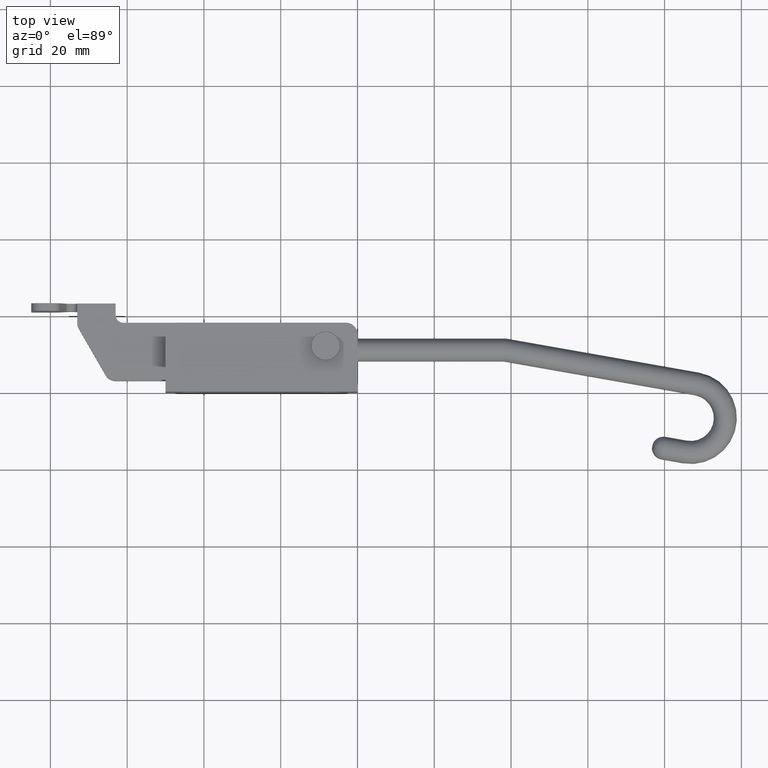
[diagram: clean part render]
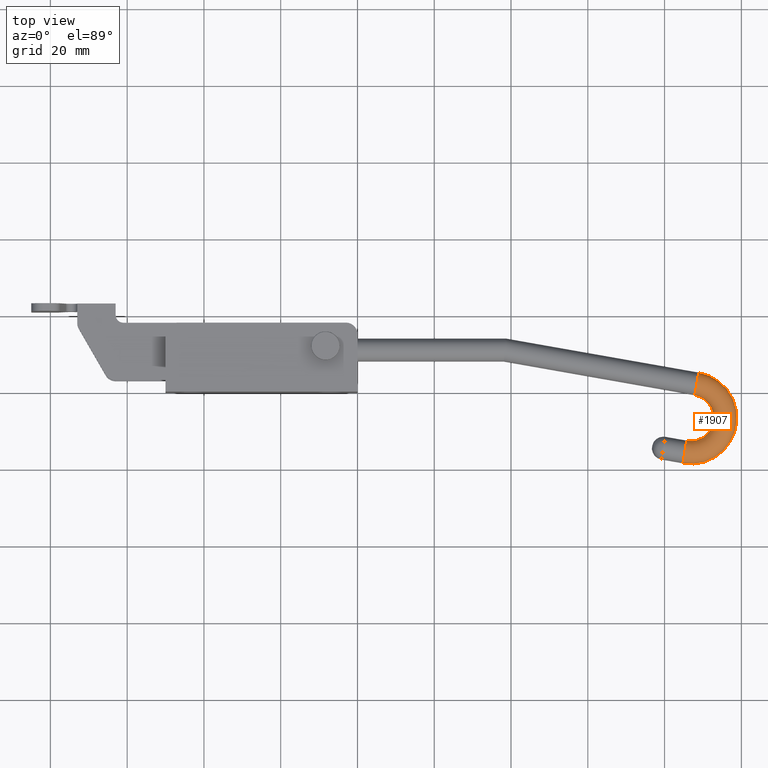
[diagram: same view with one face highlighted and labeled with its STEP entity id]
A machine part, top view. The second image highlights one B-rep face of the part: STEP entity #1907.
In plain terms, the highlighted toroidal blend (fillet) surface has major radius 9 mm and minor (blend) radius 3 mm.
Its self-contained STEP definition (entity closure, byte-faithful):
#4 = EDGE_CURVE ( 'NONE', #4223, #3603, #3150, .T. ) ;
#29 = CIRCLE ( 'NONE', #772, 3.000000000000001300 ) ;
#33 = AXIS2_PLACEMENT_3D ( 'NONE', #2789, #682, #1833 ) ;
#53 = CARTESIAN_POINT ( 'NONE',  ( 88.91859995205231800, 5.137710403799573600, -3.724911645609593000E-013 ) ) ;
#451 = DIRECTION ( 'NONE',  ( 0.9848092003166185600, -0.1736399693957080300, -6.020090166157010000E-016 ) ) ;
#563 = DIRECTION ( 'NONE',  ( -1.000000000000000000, 0.0000000000000000000, 6.038946026190218500E-016 ) ) ;
#682 = DIRECTION ( 'NONE',  ( -0.9848092003166231100, 0.1736399693956819100, 6.020090166157026800E-016 ) ) ;
#772 = AXIS2_PLACEMENT_3D ( 'NONE', #2535, #451, #2851 ) ;
#951 = CARTESIAN_POINT ( 'NONE',  ( 86.83492031930410300, -6.680000000000005000, -3.713614632422604900E-013 ) ) ;
#1179 = EDGE_CURVE ( 'NONE', #4223, #3991, #2294, .T. ) ;
#1709 = AXIS2_PLACEMENT_3D ( 'NONE', #4065, #2380, #3136 ) ;
#1828 = TOROIDAL_SURFACE ( 'NONE', #1709, 9.000000000000101300, 3.000000000000000400 ) ;
#1833 = DIRECTION ( 'NONE',  ( 0.1736399693956825800, 0.9848092003166230000, -6.352560657955673400E-017 ) ) ;
#1907 = ADVANCED_FACE ( 'NONE', ( #2795 ), #1828, .T. ) ;
#1914 = ORIENTED_EDGE ( 'NONE', *, *, #4, .F. ) ;
#1954 = CARTESIAN_POINT ( 'NONE',  ( 86.83492031930410300, -6.680000000000005000, -3.717288572820046700E-013 ) ) ;
#2071 = ORIENTED_EDGE ( 'NONE', *, *, #1179, .T. ) ;
#2162 = CARTESIAN_POINT ( 'NONE',  ( 87.87676013567821100, -0.7711447981001654500, -3.717426168817378000E-013 ) ) ;
#2294 = CIRCLE ( 'NONE', #4144, 6.000000000000102100 ) ;
#2310 = DIRECTION ( 'NONE',  ( -1.000000000000000000, 0.0000000000000000000, 6.038946026190226400E-016 ) ) ;
#2380 = DIRECTION ( 'NONE',  ( -6.038946026190219500E-016, 4.197222540567023000E-017, -1.000000000000000000 ) ) ;
#2445 = ORIENTED_EDGE ( 'NONE', *, *, #2500, .F. ) ;
#2500 = EDGE_CURVE ( 'NONE', #3603, #2539, #4131, .T. ) ;
#2535 = CARTESIAN_POINT ( 'NONE',  ( 85.27216059474275800, -15.54328280284967100, -3.711571268227885700E-013 ) ) ;
#2539 = VERTEX_POINT ( 'NONE', #2633 ) ;
#2633 = CARTESIAN_POINT ( 'NONE',  ( 84.75124068655561900, -18.49771040379953000, -3.709665500030498400E-013 ) ) ;
#2668 = CARTESIAN_POINT ( 'NONE',  ( 85.79308050292986800, -12.58885520189981500, -3.709803096027831200E-013 ) ) ;
#2789 = CARTESIAN_POINT ( 'NONE',  ( 88.39768004386526500, 2.183282802849701600, -3.723005877412206600E-013 ) ) ;
#2795 = FACE_OUTER_BOUND ( 'NONE', #4026, .T. ) ;
#2851 = DIRECTION ( 'NONE',  ( -0.1736399693957057200, -0.9848092003166190000, 6.352560657957317700E-017 ) ) ;
#3136 = DIRECTION ( 'NONE',  ( -0.9999999999652647900, -8.334890931879595300E-006, 6.038942527641245900E-016 ) ) ;
#3150 = CIRCLE ( 'NONE', #33, 3.000000000000001800 ) ;
#3331 = AXIS2_PLACEMENT_3D ( 'NONE', #1954, #4370, #2310 ) ;
#3603 = VERTEX_POINT ( 'NONE', #53 ) ;
#3681 = EDGE_CURVE ( 'NONE', #3991, #2539, #29, .T. ) ;
#3991 = VERTEX_POINT ( 'NONE', #2668 ) ;
#4026 = EDGE_LOOP ( 'NONE', ( #2445, #1914, #2071, #4519 ) ) ;
#4065 = CARTESIAN_POINT ( 'NONE',  ( 86.83492031930410300, -6.680000000000005000, -3.717288572820046700E-013 ) ) ;
#4131 = CIRCLE ( 'NONE', #3331, 12.00000000000010800 ) ;
#4144 = AXIS2_PLACEMENT_3D ( 'NONE', #951, #4416, #563 ) ;
#4223 = VERTEX_POINT ( 'NONE', #2162 ) ;
#4370 = DIRECTION ( 'NONE',  ( -6.038946026190219500E-016, 4.197222540567023000E-017, -1.000000000000000000 ) ) ;
#4416 = DIRECTION ( 'NONE',  ( -6.038946026190219500E-016, 4.197222540567023000E-017, -1.000000000000000000 ) ) ;
#4519 = ORIENTED_EDGE ( 'NONE', *, *, #3681, .T. ) ;